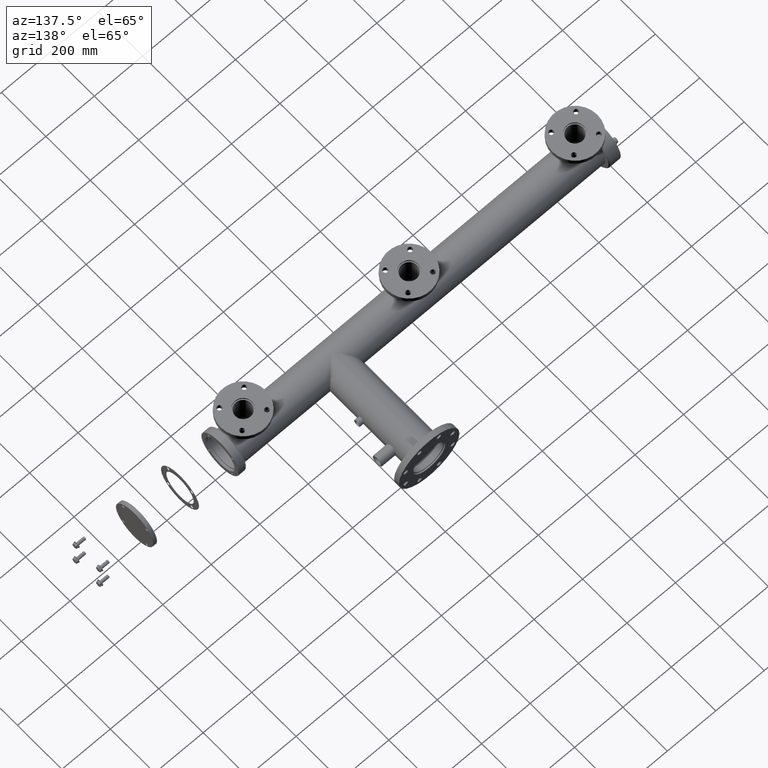
[diagram: clean part render]
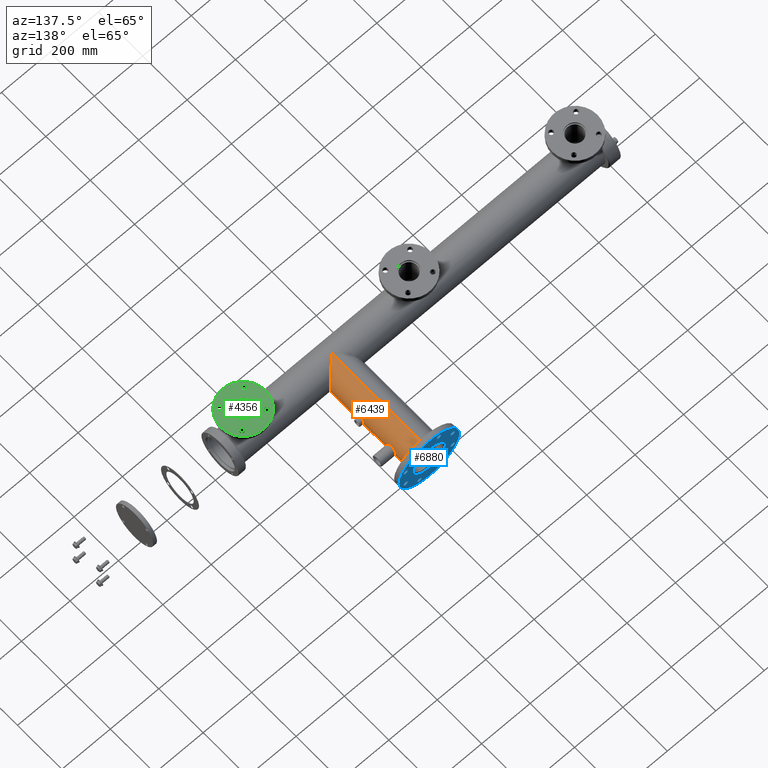
[diagram: same view with three faces highlighted in distinct colors, each labeled with its STEP entity id]
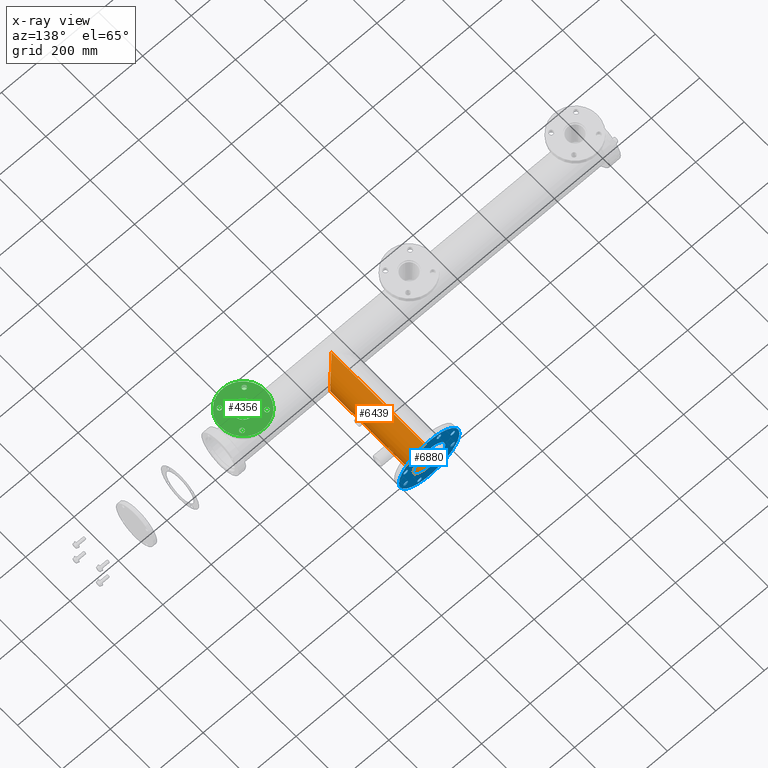
[diagram: x-ray of the same camera — body ghosted, the three highlighted faces saturated]
A machine part, auxiliary view with three faces highlighted in distinct colors.
The next image is the same camera in x-ray (body ghosted, the three faces saturated) — at least one of them is partly hidden behind the body in this view.
Their STEP definitions:

[orange] entity #6439 — the highlighted cylindrical surface (edge-blend (fillet) strip) has radius 66.5 mm, axis along (-0, -1, -0).
#27 = CARTESIAN_POINT ( 'NONE',  ( 386.4500293515864655, 330.3374283854724354, 2.596521400911405486 ) ) ;
#72 = CARTESIAN_POINT ( 'NONE',  ( 385.9323706279011503, 334.9879680968893467, 8.677919983124057879 ) ) ;
#94 = CARTESIAN_POINT ( 'NONE',  ( 320.0000000000000568, 1.564393730959410799E-13, -66.50000000000000000 ) ) ;
#223 = DIRECTION ( 'NONE',  ( 0.000000000000000000, 0.000000000000000000, -1.000000000000000000 ) ) ;
#253 = VERTEX_POINT ( 'NONE', #5325 ) ;
#326 = CARTESIAN_POINT ( 'NONE',  ( 320.0000000000000000, 434.9999999999998863, 0.000000000000000000 ) ) ;
#403 = CARTESIAN_POINT ( 'NONE',  ( 385.8917766481858393, 344.4225731648260762, -8.974852318835287335 ) ) ;
#445 = ORIENTED_EDGE ( 'NONE', *, *, #4425, .F. ) ;
#515 = CARTESIAN_POINT ( 'NONE',  ( 385.7438210024333216, 339.9999999999999432, 10.00000000000001066 ) ) ;
#526 = EDGE_LOOP ( 'NONE', ( #4016, #7071, #4644, #6212, #2782 ) ) ;
#566 = CARTESIAN_POINT ( 'NONE',  ( 320.0000000000000000, 434.9999999999998863, -66.50000000000000000 ) ) ;
#614 = AXIS2_PLACEMENT_3D ( 'NONE', #10146, #3082, #6268 ) ;
#615 = EDGE_CURVE ( 'NONE', #253, #3253, #880, .T. ) ;
#663 = CARTESIAN_POINT ( 'NONE',  ( 386.4999350399459104, 349.9995680155510627, -0.6673739008594847810 ) ) ;
#717 = CARTESIAN_POINT ( 'NONE',  ( 386.5000643238168436, 350.0004277534700350, 0.6543647062676873905 ) ) ;
#742 = CARTESIAN_POINT ( 'NONE',  ( 386.4903019188029134, 330.0638835682153740, 1.306539715836101845 ) ) ;
#796 = CARTESIAN_POINT ( 'NONE',  ( 385.7560620300040455, 338.6894921493071706, -9.919242922401560136 ) ) ;
#852 = CARTESIAN_POINT ( 'NONE',  ( 386.4225883514600355, 330.5279815938378078, 3.223054592244518624 ) ) ;
#880 =( BOUNDED_CURVE ( )  B_SPLINE_CURVE ( 3, ( #9950, #5102, #2726, #9173 ),
 .UNSPECIFIED., .F., .F. ) 
 B_SPLINE_CURVE_WITH_KNOTS ( ( 4, 4 ),
 ( 3.141592653589793116, 4.712388980384689674 ),
 .UNSPECIFIED. ) 
 CURVE ( )  GEOMETRIC_REPRESENTATION_ITEM ( )  RATIONAL_B_SPLINE_CURVE ( ( 1.000000000000000000, 0.8047378541243649375, 0.8047378541243649375, 1.000000000000000000 ) ) 
 REPRESENTATION_ITEM ( '' )  );
#888 = VERTEX_POINT ( 'NONE', #4118 ) ;
#899 = CARTESIAN_POINT ( 'NONE',  ( 386.3531682708813833, 331.0269137788728813, 4.426128135641646644 ) ) ;
#943 = CARTESIAN_POINT ( 'NONE',  ( 386.1728496388304279, 332.4627149802382178, -6.604816768852957765 ) ) ;
#981 = CARTESIAN_POINT ( 'NONE',  ( 320.0000000000000000, 434.9999999999998863, 66.50000000000000000 ) ) ;
#1334 = CARTESIAN_POINT ( 'NONE',  ( 385.7438210024333785, 339.9999999999999432, -10.00000000000001066 ) ) ;
#1568 = CARTESIAN_POINT ( 'NONE',  ( 385.8727985143951287, 335.8688003886163642, -9.112653167735253135 ) ) ;
#1587 = CARTESIAN_POINT ( 'NONE',  ( 385.7438210024333216, 339.9999999999999432, 10.00000000000001066 ) ) ;
#1672 = CARTESIAN_POINT ( 'NONE',  ( 386.0241169918720630, 333.8987896627345435, -7.949785380708817684 ) ) ;
#1719 = CARTESIAN_POINT ( 'NONE',  ( 386.3723657741020361, 330.8864727760613391, -4.129305419759584872 ) ) ;
#1917 =( BOUNDED_CURVE ( )  B_SPLINE_CURVE ( 3, ( #8945, #4304, #4351, #9244 ),
 .UNSPECIFIED., .F., .T. ) 
 B_SPLINE_CURVE_WITH_KNOTS ( ( 4, 4 ),
 ( 1.570796326794896558, 3.141592653589793116 ),
 .UNSPECIFIED. ) 
 CURVE ( )  GEOMETRIC_REPRESENTATION_ITEM ( )  RATIONAL_B_SPLINE_CURVE ( ( 1.000000000000000000, 0.8047378541243649375, 0.8047378541243649375, 1.000000000000000000 ) ) 
 REPRESENTATION_ITEM ( '' )  );
#1950 = CARTESIAN_POINT ( 'NONE',  ( 385.8218371740156272, 343.2190193227747272, -9.473382896997586400 ) ) ;
#2084 = VECTOR ( 'NONE', #6036, 1000.000000000000000 ) ;
#2161 = CARTESIAN_POINT ( 'NONE',  ( 386.0742727024590408, 346.6157907795417827, 7.526956437105591036 ) ) ;
#2207 = CARTESIAN_POINT ( 'NONE',  ( 385.8224905978969446, 343.2323776629529561, 9.468847366194561133 ) ) ;
#2226 = CARTESIAN_POINT ( 'NONE',  ( 320.0000000000000000, 434.9999999999998863, 66.50000000000000000 ) ) ;
#2253 = CARTESIAN_POINT ( 'NONE',  ( 386.4622097470750646, 349.7457302772274943, 2.264314326755914042 ) ) ;
#2311 = CARTESIAN_POINT ( 'NONE',  ( 385.7438210024333785, 340.6615727042562867, 10.00000000000001243 ) ) ;
#2348 = CARTESIAN_POINT ( 'NONE',  ( 386.0009743175249923, 334.1731781683043323, 8.133562386771238550 ) ) ;
#2366 = CARTESIAN_POINT ( 'NONE',  ( 385.7538065292854981, 341.3153000828781387, 9.934988317679971814 ) ) ;
#2447 = CARTESIAN_POINT ( 'NONE',  ( 386.2900469367691585, 331.5057351248266286, -5.287099465400896037 ) ) ;
#2503 = CARTESIAN_POINT ( 'NONE',  ( 385.9557144921005829, 334.7104858522495761, -8.492761852040223047 ) ) ;
#2546 = CARTESIAN_POINT ( 'NONE',  ( 386.2901235519580041, 331.5050981898876330, 5.286275668027236918 ) ) ;
#2602 = FACE_OUTER_BOUND ( 'NONE', #526, .T. ) ;
#2726 = CARTESIAN_POINT ( 'NONE',  ( 358.9547981021891587, 38.95479810218936478, 66.49999999999998579 ) ) ;
#2782 = ORIENTED_EDGE ( 'NONE', *, *, #8253, .F. ) ;
#2939 = CARTESIAN_POINT ( 'NONE',  ( 386.4226104083658129, 349.4721745878365482, -3.222660743660526794 ) ) ;
#2994 = CARTESIAN_POINT ( 'NONE',  ( 386.0251836325355157, 346.1132328522191415, 7.941123537630383922 ) ) ;
#3049 = CARTESIAN_POINT ( 'NONE',  ( 385.9552649350673619, 345.2840195900771505, -8.496281508641358116 ) ) ;
#3082 = DIRECTION ( 'NONE',  ( 0.000000000000000000, 1.000000000000000000, 0.000000000000000000 ) ) ;
#3098 = CARTESIAN_POINT ( 'NONE',  ( 386.3127144668197843, 348.6749949844557364, -5.016969842619828590 ) ) ;
#3128 = CARTESIAN_POINT ( 'NONE',  ( 385.7538062407403459, 338.6877793085953385, 9.934965307917938304 ) ) ;
#3152 = CARTESIAN_POINT ( 'NONE',  ( 385.7827011596006628, 342.2842957684267731, 9.741175218497067689 ) ) ;
#3184 = CARTESIAN_POINT ( 'NONE',  ( 385.7462541660131592, 339.3460321147201739, -9.984044119762486957 ) ) ;
#3230 = CARTESIAN_POINT ( 'NONE',  ( 385.7822840313187385, 337.7281913864429725, 9.743985341044473003 ) ) ;
#3253 = VERTEX_POINT ( 'NONE', #8851 ) ;
#3286 = CARTESIAN_POINT ( 'NONE',  ( 386.4247517883278533, 330.5100363445335461, -3.220365920580829489 ) ) ;
#3329 = CARTESIAN_POINT ( 'NONE',  ( 386.2213502015836184, 332.0533826417046157, 6.106025005529136074 ) ) ;
#3396 = EDGE_CURVE ( 'NONE', #3658, #3253, #8324, .T. ) ;
#3489 = DIRECTION ( 'NONE',  ( -0.000000000000000000, -1.000000000000000000, -0.000000000000000000 ) ) ;
#3512 = CARTESIAN_POINT ( 'NONE',  ( 385.7535515604686225, 341.3025977446802131, -9.936664887218794817 ) ) ;
#3537 = CYLINDRICAL_SURFACE ( 'NONE', #8071, 66.50000000000000000 ) ;
#3658 = VERTEX_POINT ( 'NONE', #981 ) ;
#3765 = CARTESIAN_POINT ( 'NONE',  ( 386.3550141073376381, 348.9888499675103049, 4.430495943103543333 ) ) ;
#3798 = CARTESIAN_POINT ( 'NONE',  ( 385.7438210024333216, 339.9999999999999432, 10.00000000000001066 ) ) ;
#3821 = CARTESIAN_POINT ( 'NONE',  ( 386.0732121799038055, 346.6052708491932890, -7.536256868306362655 ) ) ;
#3873 = CARTESIAN_POINT ( 'NONE',  ( 386.2453588077968902, 348.1381770483337164, 5.820384680312241876 ) ) ;
#3897 = CARTESIAN_POINT ( 'NONE',  ( 386.0738153214506383, 333.3997643855818751, 7.519648002216390736 ) ) ;
#3947 = CARTESIAN_POINT ( 'NONE',  ( 386.0249616160215851, 333.9082354420272623, 7.937167052122372723 ) ) ;
#4007 = CARTESIAN_POINT ( 'NONE',  ( 386.0985207984999761, 333.1577155146688938, 7.299945905158729431 ) ) ;
#4016 = ORIENTED_EDGE ( 'NONE', *, *, #8691, .F. ) ;
#4051 = CARTESIAN_POINT ( 'NONE',  ( 386.4879552517496677, 330.0803621619623982, -1.307583979518420758 ) ) ;
#4104 = CARTESIAN_POINT ( 'NONE',  ( 385.8906713199306751, 335.5620112211900619, 8.985197061164917898 ) ) ;
#4118 = CARTESIAN_POINT ( 'NONE',  ( 385.7438210024333785, 339.9999999999999432, -10.00000000000001066 ) ) ;
#4304 = CARTESIAN_POINT ( 'NONE',  ( 358.9547981021891587, 38.95479810218934347, -66.49999999999998579 ) ) ;
#4327 = B_SPLINE_CURVE_WITH_KNOTS ( 'NONE', 3,
 ( #3798, #5389, #3128, #3230, #7138, #8687, #8008, #4104, #72, #2348, #3947, #3897, #4007, #6259, #3329, #2546, #9572, #899, #6361, #5489, #852, #27, #6410, #742, #8633, #7237, #7807, #4051, #5590, #8749, #3286, #1719, #4873, #9517, #2447, #7086, #943, #4715, #1672, #2503, #4829, #7856, #1568, #7967, #4773, #7187, #796, #3184, #6463, #9414 ),
 .UNSPECIFIED., .F., .F.,
 ( 4, 2, 2, 2, 2, 2, 2, 2, 2, 2, 2, 2, 2, 2, 2, 2, 2, 2, 2, 2, 2, 2, 2, 2, 4 ),
 ( 0.000000000000000000, 0.001956808637597764501, 0.002935212956396644150, 0.003913617275195523798, 0.005870425912793139113, 0.006848830231591946337, 0.007827234550390749224, 0.009784043187988233567, 0.01076244750678697140, 0.01174085182558571271, 0.01271925614438445054, 0.01369766046318319185, 0.01565446910078070394, 0.01663287341957946086, 0.01761127773837821778, 0.01956808637597573161, 0.02054649069477449894, 0.02152489501357325932, 0.02348170365117086336, 0.02543851228876846740, 0.02641691660756726595, 0.02739532092636606797, 0.02935212956396366160, 0.03033053388276246015, 0.03130893820156125523 ),
 .UNSPECIFIED. ) ;
#4329 = CARTESIAN_POINT ( 'NONE',  ( 385.8534015964339687, 343.8329040051184506, -9.253459873210198694 ) ) ;
#4351 = CARTESIAN_POINT ( 'NONE',  ( 386.5000000000000568, 66.50000000000017053, -38.95479810218918715 ) ) ;
#4425 = EDGE_CURVE ( 'NONE', #10098, #888, #4327, .T. ) ;
#4532 = CARTESIAN_POINT ( 'NONE',  ( 386.0241914488009343, 346.1024108319116408, -7.949291292194955005 ) ) ;
#4641 = CARTESIAN_POINT ( 'NONE',  ( 386.3541598521456990, 348.9825750423528916, -4.443362853369414722 ) ) ;
#4644 = ORIENTED_EDGE ( 'NONE', *, *, #615, .F. ) ;
#4715 = CARTESIAN_POINT ( 'NONE',  ( 386.0731881778576735, 333.3946361090056598, -7.536805549222653333 ) ) ;
#4773 = CARTESIAN_POINT ( 'NONE',  ( 385.7920907885728070, 337.3998656671435015, -9.678201294885068862 ) ) ;
#4829 = CARTESIAN_POINT ( 'NONE',  ( 385.9337781189861403, 334.9903641737015505, -8.660909367771809642 ) ) ;
#4873 = CARTESIAN_POINT ( 'NONE',  ( 386.3529764584955046, 331.0283222051791086, -4.429056380253611813 ) ) ;
#4984 = VERTEX_POINT ( 'NONE', #566 ) ;
#5051 = CARTESIAN_POINT ( 'NONE',  ( 385.7438210024334353, 340.6529670600782538, -10.00000000000001599 ) ) ;
#5102 = CARTESIAN_POINT ( 'NONE',  ( 386.5000000000000568, 66.50000000000017053, 38.95479810218917294 ) ) ;
#5314 = CARTESIAN_POINT ( 'NONE',  ( 385.9559986945939727, 345.2931984045685567, 8.490601591537087600 ) ) ;
#5325 = CARTESIAN_POINT ( 'NONE',  ( 386.5000000000000568, 66.50000000000017053, 0.000000000000000000 ) ) ;
#5359 = CARTESIAN_POINT ( 'NONE',  ( 386.4066733640379425, 349.3601174380914927, -3.534930480884336923 ) ) ;
#5389 = CARTESIAN_POINT ( 'NONE',  ( 385.7438210024333216, 339.3382647414477447, 10.00000000000001243 ) ) ;
#5410 = CARTESIAN_POINT ( 'NONE',  ( 386.4899882655163879, 349.9340064007342903, -1.319254446139957793 ) ) ;
#5440 = VECTOR ( 'NONE', #6200, 1000.000000000000000 ) ;
#5489 = CARTESIAN_POINT ( 'NONE',  ( 386.4069255638094091, 330.6381080989903012, 3.530014163690638362 ) ) ;
#5590 = CARTESIAN_POINT ( 'NONE',  ( 386.4806956964087021, 330.1289868300275998, -1.634049406327314324 ) ) ;
#5870 = CARTESIAN_POINT ( 'NONE',  ( 385.7941862350069187, 342.5928321898150557, -9.663554736688915625 ) ) ;
#6036 = DIRECTION ( 'NONE',  ( -0.000000000000000000, -1.000000000000000000, -0.000000000000000000 ) ) ;
#6075 = CARTESIAN_POINT ( 'NONE',  ( 386.4506153326170192, 349.6666001236251873, 2.581654393427130767 ) ) ;
#6178 = CARTESIAN_POINT ( 'NONE',  ( 386.1481082465153349, 347.3057866251780865, 6.836038472577540048 ) ) ;
#6200 = DIRECTION ( 'NONE',  ( -0.000000000000000000, -1.000000000000000000, -0.000000000000000000 ) ) ;
#6212 = ORIENTED_EDGE ( 'NONE', *, *, #6581, .F. ) ;
#6226 = CARTESIAN_POINT ( 'NONE',  ( 385.7946922565384398, 342.6056718861582908, 9.660114379339963975 ) ) ;
#6259 = CARTESIAN_POINT ( 'NONE',  ( 386.1724010301696239, 332.4669873880726527, 6.608932574503009860 ) ) ;
#6268 = DIRECTION ( 'NONE',  ( -1.000000000000000000, 0.000000000000000000, 0.000000000000000000 ) ) ;
#6279 = CARTESIAN_POINT ( 'NONE',  ( 386.1717782871216400, 347.5275810789783577, -6.615156360639141475 ) ) ;
#6361 = CARTESIAN_POINT ( 'NONE',  ( 386.3722159423887774, 330.8875740753639434, 4.131551007802012343 ) ) ;
#6410 = CARTESIAN_POINT ( 'NONE',  ( 386.4618556226578221, 330.2566795736709651, 2.275098022863660585 ) ) ;
#6439 = ADVANCED_FACE ( 'NONE', ( #8220, #2602 ), #3537, .T. ) ;
#6463 = CARTESIAN_POINT ( 'NONE',  ( 385.7438210024334921, 339.6734362500545217, -10.00000000000001243 ) ) ;
#6540 = CIRCLE ( 'NONE', #614, 66.50000000000000000 ) ;
#6581 = EDGE_CURVE ( 'NONE', #7044, #253, #1917, .T. ) ;
#6844 = CARTESIAN_POINT ( 'NONE',  ( 386.2217377812820018, 347.9497165229468010, -6.101436846094177469 ) ) ;
#6876 = EDGE_CURVE ( 'NONE', #888, #10098, #9651, .T. ) ;
#6899 = CARTESIAN_POINT ( 'NONE',  ( 385.9330483652087764, 344.9999790272336213, -8.666448942350388762 ) ) ;
#6955 = CARTESIAN_POINT ( 'NONE',  ( 386.4617370711548006, 349.7425089386991885, -2.278101939167759049 ) ) ;
#7001 = CARTESIAN_POINT ( 'NONE',  ( 385.8925956985565335, 344.4347070471453662, 8.968837692739214162 ) ) ;
#7044 = VERTEX_POINT ( 'NONE', #94 ) ;
#7071 = ORIENTED_EDGE ( 'NONE', *, *, #3396, .T. ) ;
#7086 = CARTESIAN_POINT ( 'NONE',  ( 386.2219609794964867, 332.0484613104030700, -6.098922738847337044 ) ) ;
#7138 = CARTESIAN_POINT ( 'NONE',  ( 385.7940276523542593, 337.4110385357455471, 9.664637406429779531 ) ) ;
#7187 = CARTESIAN_POINT ( 'NONE',  ( 385.7634284798351132, 338.3625026788905643, -9.870444378885009584 ) ) ;
#7237 = CARTESIAN_POINT ( 'NONE',  ( 386.5000182388894245, 329.9998787113766525, -0.3229022301434509301 ) ) ;
#7673 = CARTESIAN_POINT ( 'NONE',  ( 386.3136527519576475, 348.6821650348526873, 5.004720201462792062 ) ) ;
#7782 = CARTESIAN_POINT ( 'NONE',  ( 386.4902850381639610, 349.9359821429683279, 1.304519406486168709 ) ) ;
#7807 = CARTESIAN_POINT ( 'NONE',  ( 386.4976303611522326, 330.0157191081377164, -0.6504811862877826201 ) ) ;
#7856 = CARTESIAN_POINT ( 'NONE',  ( 385.8923211864619134, 335.5692725870016488, -8.970867114197769610 ) ) ;
#7967 = CARTESIAN_POINT ( 'NONE',  ( 385.8200303842764924, 336.7764454043574460, -9.488821196915628420 ) ) ;
#8008 = CARTESIAN_POINT ( 'NONE',  ( 385.8378281355899730, 336.4699988719703470, 9.361969327727530654 ) ) ;
#8071 = AXIS2_PLACEMENT_3D ( 'NONE', #326, #3489, #223 ) ;
#8194 = CARTESIAN_POINT ( 'NONE',  ( 385.7822716906364349, 342.2719096148472886, -9.744072259240351030 ) ) ;
#8220 = FACE_BOUND ( 'NONE', #8859, .T. ) ;
#8253 = EDGE_CURVE ( 'NONE', #4984, #7044, #9344, .T. ) ;
#8324 = LINE ( 'NONE', #2226, #5440 ) ;
#8388 = ORIENTED_EDGE ( 'NONE', *, *, #6876, .F. ) ;
#8418 = CARTESIAN_POINT ( 'NONE',  ( 320.0000000000000000, 434.9999999999998863, -66.50000000000000000 ) ) ;
#8456 = CARTESIAN_POINT ( 'NONE',  ( 386.4073028535377148, 349.3645744121035932, 3.523056285420671507 ) ) ;
#8633 = CARTESIAN_POINT ( 'NONE',  ( 386.4999632076206240, 330.0002446693385423, 0.6570082773811819488 ) ) ;
#8655 = CARTESIAN_POINT ( 'NONE',  ( 385.8541800074449952, 343.8461793446867887, 9.247935402502813318 ) ) ;
#8687 = CARTESIAN_POINT ( 'NONE',  ( 385.8217682353205760, 336.7822647142910455, 9.473864960630345777 ) ) ;
#8691 = EDGE_CURVE ( 'NONE', #3658, #4984, #6540, .T. ) ;
#8749 = CARTESIAN_POINT ( 'NONE',  ( 386.4523899576930148, 330.3208402233217953, -2.596524576022698483 ) ) ;
#8851 = CARTESIAN_POINT ( 'NONE',  ( 320.0000000000000568, 1.564393730959410799E-13, 66.50000000000000000 ) ) ;
#8859 = EDGE_LOOP ( 'NONE', ( #445, #8388 ) ) ;
#8945 = CARTESIAN_POINT ( 'NONE',  ( 320.0000000000000568, 1.564393730959410799E-13, -66.50000000000000000 ) ) ;
#9173 = CARTESIAN_POINT ( 'NONE',  ( 320.0000000000000568, 1.564393730959410799E-13, 66.50000000000000000 ) ) ;
#9244 = CARTESIAN_POINT ( 'NONE',  ( 386.5000000000000568, 66.50000000000017053, 0.000000000000000000 ) ) ;
#9344 = LINE ( 'NONE', #8418, #2084 ) ;
#9383 = CARTESIAN_POINT ( 'NONE',  ( 386.4231773265744323, 349.4761472141464083, 3.211032751779088201 ) ) ;
#9414 = CARTESIAN_POINT ( 'NONE',  ( 385.7438210024333785, 339.9999999999999432, -10.00000000000001066 ) ) ;
#9517 = CARTESIAN_POINT ( 'NONE',  ( 386.3118435406727258, 331.3377767683414277, -5.007337771557187622 ) ) ;
#9572 = CARTESIAN_POINT ( 'NONE',  ( 386.3121844626700181, 331.3351777306731378, 5.002773395415426094 ) ) ;
#9651 = B_SPLINE_CURVE_WITH_KNOTS ( 'NONE', 3,
 ( #1334, #5051, #3512, #8194, #5870, #1950, #4329, #403, #6899, #3049, #4532, #3821, #6279, #6844, #3098, #4641, #5359, #2939, #10155, #6955, #5410, #663, #717, #7782, #2253, #6075, #9383, #8456, #3765, #7673, #3873, #10110, #10000, #6178, #2161, #2994, #5314, #10052, #7001, #8655, #2207, #6226, #3152, #2366, #2311, #1587 ),
 .UNSPECIFIED., .F., .F.,
 ( 4, 2, 2, 1, 2, 2, 2, 2, 2, 2, 2, 2, 2, 2, 2, 2, 2, 2, 2, 2, 1, 2, 2, 4 ),
 ( 0.03130893820156125523, 0.03326526615198639736, 0.03424343012719888169, 0.03522159410241137295, 0.03619975807762386422, 0.03717792205283634854, 0.03913425000326133107, 0.04109057795368630667, 0.04304690590411128226, 0.04402506987932374577, 0.04500323385453620234, 0.04695956180496112242, 0.04891588975538603556, 0.04989405373059849214, 0.05087221770581094871, 0.05282854565623586185, 0.05380670963144831842, 0.05478487360666077499, 0.05674120155708556323, 0.05771936553229795042, 0.05869752950751034454, 0.05967569348272273866, 0.06065385745793513278, 0.06261018540835991408 ),
 .UNSPECIFIED. ) ;
#9950 = CARTESIAN_POINT ( 'NONE',  ( 386.5000000000000568, 66.50000000000017053, 0.000000000000000000 ) ) ;
#10000 = CARTESIAN_POINT ( 'NONE',  ( 386.1727574691304312, 347.5250659767557408, 6.594035339611298063 ) ) ;
#10052 = CARTESIAN_POINT ( 'NONE',  ( 385.9338505240017412, 345.0104993385851913, 8.660344827473002383 ) ) ;
#10098 = VERTEX_POINT ( 'NONE', #515 ) ;
#10110 = CARTESIAN_POINT ( 'NONE',  ( 386.2214203272095574, 347.9416180365933542, 6.085936491241420221 ) ) ;
#10146 = CARTESIAN_POINT ( 'NONE',  ( 320.0000000000000000, 434.9999999999998863, 0.000000000000000000 ) ) ;
#10155 = CARTESIAN_POINT ( 'NONE',  ( 386.4500963767183066, 349.6630340181567931, -2.594880971283756388 ) ) ;

[blue] entity #6880 — the highlighted planar face has unit normal (-0, -1, 0).
#98 = ORIENTED_EDGE ( 'NONE', *, *, #5026, .F. ) ;
#128 = DIRECTION ( 'NONE',  ( -0.7071067811865561215, 0.7071067811865391350, 0.000000000000000000 ) ) ;
#132 = AXIS2_PLACEMENT_3D ( 'NONE', #1402, #3065, #7691 ) ;
#189 = CARTESIAN_POINT ( 'NONE',  ( 97.00735091368457574, 49.18176039833552693, -22.00000000000002132 ) ) ;
#310 = CARTESIAN_POINT ( 'NONE',  ( 97.00735091368467522, 40.18176039833552693, -22.00000000000002132 ) ) ;
#364 = EDGE_LOOP ( 'NONE', ( #4188, #4075 ) ) ;
#415 = CARTESIAN_POINT ( 'NONE',  ( 97.00735091368467522, 40.18176039833552693, -22.00000000000002132 ) ) ;
#436 = AXIS2_PLACEMENT_3D ( 'NONE', #6561, #9100, #1827 ) ;
#457 = AXIS2_PLACEMENT_3D ( 'NONE', #5924, #1276, #9072 ) ;
#470 = DIRECTION ( 'NONE',  ( -1.079383496163346391E-14, 1.000000000000000000, 0.000000000000000000 ) ) ;
#509 = DIRECTION ( 'NONE',  ( 3.083952846180989689E-15, -1.000000000000000000, 0.000000000000000000 ) ) ;
#514 = ORIENTED_EDGE ( 'NONE', *, *, #6287, .F. ) ;
#547 = DIRECTION ( 'NONE',  ( 0.7071067811865513475, -0.7071067811865435759, 0.000000000000000000 ) ) ;
#574 = DIRECTION ( 'NONE',  ( 1.000000000000000000, -1.420362989772363657E-32, 0.000000000000000000 ) ) ;
#640 = EDGE_CURVE ( 'NONE', #2831, #9448, #952, .T. ) ;
#728 = DIRECTION ( 'NONE',  ( 1.000000000000000000, -1.420362989772363657E-32, 0.000000000000000000 ) ) ;
#731 = CARTESIAN_POINT ( 'NONE',  ( 31.18176039833448598, -97.00735091368505891, -22.00000000000002132 ) ) ;
#741 = EDGE_CURVE ( 'NONE', #3306, #2386, #4917, .T. ) ;
#765 = DIRECTION ( 'NONE',  ( 1.000000000000000000, -1.420362989772364204E-32, -1.725633230170963324E-31 ) ) ;
#775 = CARTESIAN_POINT ( 'NONE',  ( -40.18176039833448954, 97.00735091368505891, -22.00000000000002132 ) ) ;
#784 = CARTESIAN_POINT ( 'NONE',  ( -90.64338988300650612, 46.54572142901310627, -22.00000000000002132 ) ) ;
#864 = EDGE_LOOP ( 'NONE', ( #514, #5844 ) ) ;
#928 = EDGE_CURVE ( 'NONE', #2360, #9727, #6630, .T. ) ;
#952 = CIRCLE ( 'NONE', #6714, 9.000000000000001776 ) ;
#954 = CIRCLE ( 'NONE', #3932, 66.50000000000000000 ) ;
#1086 = DIRECTION ( 'NONE',  ( 1.725633230170963324E-31, -3.019858152799185818E-31, -1.000000000000000000 ) ) ;
#1107 = ORIENTED_EDGE ( 'NONE', *, *, #1715, .F. ) ;
#1116 = CARTESIAN_POINT ( 'NONE',  ( -97.00735091368511576, -40.18176039833485191, -22.00000000000002132 ) ) ;
#1175 = CARTESIAN_POINT ( 'NONE',  ( -97.00735091368511576, -40.18176039833485191, -22.00000000000002132 ) ) ;
#1276 = DIRECTION ( 'NONE',  ( 1.725633230170963324E-31, -3.019858152799185818E-31, -1.000000000000000000 ) ) ;
#1328 = DIRECTION ( 'NONE',  ( -1.725633230170963324E-31, 3.019858152799185818E-31, 1.000000000000000000 ) ) ;
#1384 = FACE_BOUND ( 'NONE', #4883, .T. ) ;
#1402 = CARTESIAN_POINT ( 'NONE',  ( 0.000000000000000000, -9.244463733058732095E-30, -22.00000000000002132 ) ) ;
#1437 = FACE_BOUND ( 'NONE', #4587, .T. ) ;
#1539 = PLANE ( 'NONE',  #6111 ) ;
#1652 = CIRCLE ( 'NONE', #2484, 125.0000000000000000 ) ;
#1715 = EDGE_CURVE ( 'NONE', #2891, #2690, #9667, .T. ) ;
#1776 = CIRCLE ( 'NONE', #8206, 9.000000000000001776 ) ;
#1827 = DIRECTION ( 'NONE',  ( -0.7071067811865463515, -0.7071067811865487940, 0.000000000000000000 ) ) ;
#1874 = CARTESIAN_POINT ( 'NONE',  ( 66.50000000000000000, -1.018900512125735437E-29, -22.00000000000002132 ) ) ;
#2141 = CIRCLE ( 'NONE', #7417, 9.000000000000003553 ) ;
#2165 = DIRECTION ( 'NONE',  ( 1.725633230170963324E-31, -3.019858152799185818E-31, -1.000000000000000000 ) ) ;
#2213 = EDGE_CURVE ( 'NONE', #3249, #8201, #10047, .T. ) ;
#2242 = CIRCLE ( 'NONE', #2920, 8.999999999999996447 ) ;
#2299 = ORIENTED_EDGE ( 'NONE', *, *, #8397, .T. ) ;
#2360 = VERTEX_POINT ( 'NONE', #3117 ) ;
#2386 = VERTEX_POINT ( 'NONE', #9348 ) ;
#2484 = AXIS2_PLACEMENT_3D ( 'NONE', #6794, #1328, #6745 ) ;
#2591 = DIRECTION ( 'NONE',  ( 1.725633230170963324E-31, -3.019858152799185818E-31, -1.000000000000000000 ) ) ;
#2638 = CIRCLE ( 'NONE', #10053, 9.000000000000003553 ) ;
#2690 = VERTEX_POINT ( 'NONE', #8318 ) ;
#2798 = DIRECTION ( 'NONE',  ( 0.7071067811865513475, -0.7071067811865435759, 0.000000000000000000 ) ) ;
#2831 = VERTEX_POINT ( 'NONE', #9226 ) ;
#2851 = EDGE_CURVE ( 'NONE', #9398, #5968, #1652, .T. ) ;
#2891 = VERTEX_POINT ( 'NONE', #8395 ) ;
#2920 = AXIS2_PLACEMENT_3D ( 'NONE', #6315, #8641, #128 ) ;
#2976 = ORIENTED_EDGE ( 'NONE', *, *, #9508, .F. ) ;
#3028 = EDGE_CURVE ( 'NONE', #10070, #9477, #2638, .T. ) ;
#3065 = DIRECTION ( 'NONE',  ( -1.725633230170963324E-31, 3.019858152799185818E-31, 1.000000000000000000 ) ) ;
#3117 = CARTESIAN_POINT ( 'NONE',  ( 49.18176039833448954, -97.00735091368505891, -22.00000000000002132 ) ) ;
#3249 = VERTEX_POINT ( 'NONE', #189 ) ;
#3306 = VERTEX_POINT ( 'NONE', #3790 ) ;
#3326 = CARTESIAN_POINT ( 'NONE',  ( 90.64338988300659139, -46.54572142901247389, -22.00000000000002132 ) ) ;
#3515 = DIRECTION ( 'NONE',  ( 1.725633230170963324E-31, -3.019858152799185818E-31, -1.000000000000000000 ) ) ;
#3568 = CARTESIAN_POINT ( 'NONE',  ( -125.0000000000000000, 1.530808498934191561E-14, -22.00000000000002132 ) ) ;
#3744 = AXIS2_PLACEMENT_3D ( 'NONE', #4673, #10037, #547 ) ;
#3769 = CARTESIAN_POINT ( 'NONE',  ( 103.3713119443643365, -33.81779936765450856, -22.00000000000002132 ) ) ;
#3790 = CARTESIAN_POINT ( 'NONE',  ( 33.81779936765415329, 103.3713119443644644, -22.00000000000002132 ) ) ;
#3796 = AXIS2_PLACEMENT_3D ( 'NONE', #415, #6710, #470 ) ;
#3814 = ORIENTED_EDGE ( 'NONE', *, *, #928, .F. ) ;
#3824 = CARTESIAN_POINT ( 'NONE',  ( -103.3713119443643507, 33.81779936765522621, -22.00000000000002132 ) ) ;
#3926 = DIRECTION ( 'NONE',  ( -1.000000000000000000, 0.000000000000000000, 0.000000000000000000 ) ) ;
#3932 = AXIS2_PLACEMENT_3D ( 'NONE', #9297, #7794, #574 ) ;
#4050 = CARTESIAN_POINT ( 'NONE',  ( -97.00735091368508733, -49.18176039833485902, -22.00000000000002132 ) ) ;
#4075 = ORIENTED_EDGE ( 'NONE', *, *, #8053, .F. ) ;
#4188 = ORIENTED_EDGE ( 'NONE', *, *, #2213, .F. ) ;
#4320 = ORIENTED_EDGE ( 'NONE', *, *, #7485, .F. ) ;
#4583 = FACE_BOUND ( 'NONE', #9099, .T. ) ;
#4587 = EDGE_LOOP ( 'NONE', ( #5933, #4320 ) ) ;
#4673 = CARTESIAN_POINT ( 'NONE',  ( -40.18176039833382163, -97.00735091368534313, -22.00000000000002132 ) ) ;
#4738 = FACE_BOUND ( 'NONE', #864, .T. ) ;
#4743 = EDGE_LOOP ( 'NONE', ( #5919, #9938 ) ) ;
#4883 = EDGE_LOOP ( 'NONE', ( #3814, #7263 ) ) ;
#4891 = CIRCLE ( 'NONE', #436, 9.000000000000001776 ) ;
#4905 = ORIENTED_EDGE ( 'NONE', *, *, #9632, .T. ) ;
#4917 = CIRCLE ( 'NONE', #457, 8.999999999999996447 ) ;
#4919 = CIRCLE ( 'NONE', #132, 125.0000000000000000 ) ;
#5026 = EDGE_CURVE ( 'NONE', #2690, #2891, #5514, .T. ) ;
#5167 = DIRECTION ( 'NONE',  ( 1.725633230170963324E-31, -3.019858152799185818E-31, -1.000000000000000000 ) ) ;
#5191 = EDGE_LOOP ( 'NONE', ( #2976, #6197 ) ) ;
#5458 = FACE_BOUND ( 'NONE', #364, .T. ) ;
#5514 = CIRCLE ( 'NONE', #8143, 9.000000000000001776 ) ;
#5664 = EDGE_LOOP ( 'NONE', ( #98, #1107 ) ) ;
#5797 = DIRECTION ( 'NONE',  ( 0.7071067811865416886, 0.7071067811865532349, 0.000000000000000000 ) ) ;
#5844 = ORIENTED_EDGE ( 'NONE', *, *, #640, .F. ) ;
#5874 = DIRECTION ( 'NONE',  ( -0.7071067811865463515, -0.7071067811865487940, 0.000000000000000000 ) ) ;
#5919 = ORIENTED_EDGE ( 'NONE', *, *, #3028, .F. ) ;
#5924 = CARTESIAN_POINT ( 'NONE',  ( 40.18176039833315372, 97.00735091368561314, -22.00000000000002132 ) ) ;
#5933 = ORIENTED_EDGE ( 'NONE', *, *, #741, .F. ) ;
#5968 = VERTEX_POINT ( 'NONE', #3568 ) ;
#6019 = VERTEX_POINT ( 'NONE', #6651 ) ;
#6067 = ORIENTED_EDGE ( 'NONE', *, *, #9655, .F. ) ;
#6111 = AXIS2_PLACEMENT_3D ( 'NONE', #7880, #7729, #765 ) ;
#6136 = FACE_BOUND ( 'NONE', #5191, .T. ) ;
#6197 = ORIENTED_EDGE ( 'NONE', *, *, #7241, .F. ) ;
#6287 = EDGE_CURVE ( 'NONE', #9448, #2831, #9574, .T. ) ;
#6315 = CARTESIAN_POINT ( 'NONE',  ( 40.18176039833315372, 97.00735091368561314, -22.00000000000002132 ) ) ;
#6409 = CARTESIAN_POINT ( 'NONE',  ( 125.0000000000000000, -1.101991747027418726E-29, -22.00000000000002132 ) ) ;
#6437 = VERTEX_POINT ( 'NONE', #1874 ) ;
#6485 = DIRECTION ( 'NONE',  ( 1.725633230170963324E-31, -3.019858152799185818E-31, -1.000000000000000000 ) ) ;
#6533 = EDGE_CURVE ( 'NONE', #9477, #10070, #2141, .T. ) ;
#6549 = DIRECTION ( 'NONE',  ( -1.079383496163346391E-14, 1.000000000000000000, 0.000000000000000000 ) ) ;
#6561 = CARTESIAN_POINT ( 'NONE',  ( -97.00735091368542840, 40.18176039833416979, -22.00000000000002132 ) ) ;
#6587 = AXIS2_PLACEMENT_3D ( 'NONE', #1116, #8090, #6640 ) ;
#6630 = CIRCLE ( 'NONE', #9110, 9.000000000000001776 ) ;
#6640 = DIRECTION ( 'NONE',  ( 3.083952846180989689E-15, -1.000000000000000000, 0.000000000000000000 ) ) ;
#6651 = CARTESIAN_POINT ( 'NONE',  ( -66.50000000000000000, 8.143901214329898396E-15, -22.00000000000002132 ) ) ;
#6710 = DIRECTION ( 'NONE',  ( 1.725633230170963324E-31, -3.019858152799185818E-31, -1.000000000000000000 ) ) ;
#6714 = AXIS2_PLACEMENT_3D ( 'NONE', #1175, #9850, #509 ) ;
#6745 = DIRECTION ( 'NONE',  ( 1.000000000000000000, -1.420362989772363930E-32, 0.000000000000000000 ) ) ;
#6794 = CARTESIAN_POINT ( 'NONE',  ( 0.000000000000000000, -9.244463733058732095E-30, -22.00000000000002132 ) ) ;
#6836 = EDGE_LOOP ( 'NONE', ( #9077, #6067 ) ) ;
#6864 = AXIS2_PLACEMENT_3D ( 'NONE', #775, #6485, #3926 ) ;
#6880 = ADVANCED_FACE ( 'NONE', ( #1437, #5458, #8553, #1384, #6136, #4738, #9283, #8502, #8606, #4583 ), #1539, .F. ) ;
#6884 = CIRCLE ( 'NONE', #10189, 8.999999999999998224 ) ;
#6895 = DIRECTION ( 'NONE',  ( 1.725633230170963324E-31, -3.019858152799185818E-31, -1.000000000000000000 ) ) ;
#7185 = CARTESIAN_POINT ( 'NONE',  ( 40.18176039833448954, -97.00735091368505891, -22.00000000000002132 ) ) ;
#7235 = DIRECTION ( 'NONE',  ( 1.725633230170963324E-31, -3.019858152799185818E-31, -1.000000000000000000 ) ) ;
#7241 = EDGE_CURVE ( 'NONE', #8124, #8132, #8339, .T. ) ;
#7263 = ORIENTED_EDGE ( 'NONE', *, *, #9451, .F. ) ;
#7417 = AXIS2_PLACEMENT_3D ( 'NONE', #9824, #1086, #5797 ) ;
#7424 = CARTESIAN_POINT ( 'NONE',  ( -97.00735091368542840, 40.18176039833416979, -22.00000000000002132 ) ) ;
#7485 = EDGE_CURVE ( 'NONE', #2386, #3306, #2242, .T. ) ;
#7521 = CIRCLE ( 'NONE', #9839, 9.000000000000001776 ) ;
#7634 = EDGE_CURVE ( 'NONE', #10145, #9782, #4891, .T. ) ;
#7689 = CARTESIAN_POINT ( 'NONE',  ( 97.00735091368477470, 31.18176039833552693, -22.00000000000002132 ) ) ;
#7691 = DIRECTION ( 'NONE',  ( 1.000000000000000000, -1.420362989772363930E-32, 0.000000000000000000 ) ) ;
#7727 = DIRECTION ( 'NONE',  ( 0.7071067811865416886, 0.7071067811865532349, 0.000000000000000000 ) ) ;
#7729 = DIRECTION ( 'NONE',  ( 1.725633230170963324E-31, 3.019858152799185818E-31, 1.000000000000000000 ) ) ;
#7794 = DIRECTION ( 'NONE',  ( -1.725633230170963324E-31, 3.019858152799185818E-31, 1.000000000000000000 ) ) ;
#7880 = CARTESIAN_POINT ( 'NONE',  ( 0.000000000000000000, 125.0000000000001990, -22.00000000000002132 ) ) ;
#8053 = EDGE_CURVE ( 'NONE', #8201, #3249, #7521, .T. ) ;
#8085 = EDGE_LOOP ( 'NONE', ( #9427, #9091 ) ) ;
#8090 = DIRECTION ( 'NONE',  ( 1.725633230170963324E-31, -3.019858152799185818E-31, -1.000000000000000000 ) ) ;
#8124 = VERTEX_POINT ( 'NONE', #8354 ) ;
#8132 = VERTEX_POINT ( 'NONE', #8517 ) ;
#8143 = AXIS2_PLACEMENT_3D ( 'NONE', #9236, #2165, #9909 ) ;
#8201 = VERTEX_POINT ( 'NONE', #7689 ) ;
#8206 = AXIS2_PLACEMENT_3D ( 'NONE', #7185, #7235, #8835 ) ;
#8264 = CARTESIAN_POINT ( 'NONE',  ( -40.18176039833382163, -97.00735091368534313, -22.00000000000002132 ) ) ;
#8318 = CARTESIAN_POINT ( 'NONE',  ( -49.18176039833448954, 97.00735091368505891, -22.00000000000002132 ) ) ;
#8339 = CIRCLE ( 'NONE', #3744, 8.999999999999998224 ) ;
#8348 = CIRCLE ( 'NONE', #9673, 66.50000000000000000 ) ;
#8354 = CARTESIAN_POINT ( 'NONE',  ( -46.54572142901277942, -90.64338988300644928, -22.00000000000002132 ) ) ;
#8395 = CARTESIAN_POINT ( 'NONE',  ( -31.18176039833448598, 97.00735091368505891, -22.00000000000002132 ) ) ;
#8397 = EDGE_CURVE ( 'NONE', #6019, #6437, #8348, .T. ) ;
#8498 = CARTESIAN_POINT ( 'NONE',  ( 97.00735091368545682, -40.18176039833348767, -22.00000000000002132 ) ) ;
#8502 = FACE_BOUND ( 'NONE', #5664, .T. ) ;
#8517 = CARTESIAN_POINT ( 'NONE',  ( -33.81779936765486383, -103.3713119443642370, -22.00000000000002132 ) ) ;
#8553 = FACE_BOUND ( 'NONE', #4743, .T. ) ;
#8606 = FACE_OUTER_BOUND ( 'NONE', #6836, .T. ) ;
#8638 = DIRECTION ( 'NONE',  ( 1.725633230170963324E-31, -3.019858152799185818E-31, -1.000000000000000000 ) ) ;
#8641 = DIRECTION ( 'NONE',  ( 1.725633230170963324E-31, -3.019858152799185818E-31, -1.000000000000000000 ) ) ;
#8719 = AXIS2_PLACEMENT_3D ( 'NONE', #7424, #3515, #5874 ) ;
#8729 = CARTESIAN_POINT ( 'NONE',  ( 0.000000000000000000, -9.244463733058732095E-30, -22.00000000000002132 ) ) ;
#8800 = DIRECTION ( 'NONE',  ( 1.000000000000000000, 0.000000000000000000, 0.000000000000000000 ) ) ;
#8835 = DIRECTION ( 'NONE',  ( 1.000000000000000000, 0.000000000000000000, 0.000000000000000000 ) ) ;
#8840 = CARTESIAN_POINT ( 'NONE',  ( 40.18176039833448954, -97.00735091368505891, -22.00000000000002132 ) ) ;
#9040 = CIRCLE ( 'NONE', #8719, 9.000000000000001776 ) ;
#9072 = DIRECTION ( 'NONE',  ( -0.7071067811865561215, 0.7071067811865391350, 0.000000000000000000 ) ) ;
#9077 = ORIENTED_EDGE ( 'NONE', *, *, #2851, .F. ) ;
#9091 = ORIENTED_EDGE ( 'NONE', *, *, #9972, .F. ) ;
#9099 = EDGE_LOOP ( 'NONE', ( #4905, #2299 ) ) ;
#9100 = DIRECTION ( 'NONE',  ( 1.725633230170963324E-31, -3.019858152799185818E-31, -1.000000000000000000 ) ) ;
#9110 = AXIS2_PLACEMENT_3D ( 'NONE', #8840, #8638, #8800 ) ;
#9226 = CARTESIAN_POINT ( 'NONE',  ( -97.00735091368514418, -31.18176039833485547, -22.00000000000002132 ) ) ;
#9236 = CARTESIAN_POINT ( 'NONE',  ( -40.18176039833448954, 97.00735091368505891, -22.00000000000002132 ) ) ;
#9283 = FACE_BOUND ( 'NONE', #8085, .T. ) ;
#9297 = CARTESIAN_POINT ( 'NONE',  ( 0.000000000000000000, -9.244463733058732095E-30, -22.00000000000002132 ) ) ;
#9348 = CARTESIAN_POINT ( 'NONE',  ( 46.54572142901215415, 90.64338988300677613, -22.00000000000002132 ) ) ;
#9397 = DIRECTION ( 'NONE',  ( -1.725633230170963324E-31, 3.019858152799185818E-31, 1.000000000000000000 ) ) ;
#9398 = VERTEX_POINT ( 'NONE', #6409 ) ;
#9427 = ORIENTED_EDGE ( 'NONE', *, *, #7634, .F. ) ;
#9448 = VERTEX_POINT ( 'NONE', #4050 ) ;
#9451 = EDGE_CURVE ( 'NONE', #9727, #2360, #1776, .T. ) ;
#9477 = VERTEX_POINT ( 'NONE', #3326 ) ;
#9508 = EDGE_CURVE ( 'NONE', #8132, #8124, #6884, .T. ) ;
#9574 = CIRCLE ( 'NONE', #6587, 9.000000000000001776 ) ;
#9632 = EDGE_CURVE ( 'NONE', #6437, #6019, #954, .T. ) ;
#9655 = EDGE_CURVE ( 'NONE', #5968, #9398, #4919, .T. ) ;
#9667 = CIRCLE ( 'NONE', #6864, 9.000000000000001776 ) ;
#9673 = AXIS2_PLACEMENT_3D ( 'NONE', #8729, #9397, #728 ) ;
#9727 = VERTEX_POINT ( 'NONE', #731 ) ;
#9782 = VERTEX_POINT ( 'NONE', #784 ) ;
#9824 = CARTESIAN_POINT ( 'NONE',  ( 97.00735091368545682, -40.18176039833348767, -22.00000000000002132 ) ) ;
#9839 = AXIS2_PLACEMENT_3D ( 'NONE', #310, #2591, #6549 ) ;
#9850 = DIRECTION ( 'NONE',  ( 1.725633230170963324E-31, -3.019858152799185818E-31, -1.000000000000000000 ) ) ;
#9909 = DIRECTION ( 'NONE',  ( -1.000000000000000000, 0.000000000000000000, 0.000000000000000000 ) ) ;
#9938 = ORIENTED_EDGE ( 'NONE', *, *, #6533, .F. ) ;
#9972 = EDGE_CURVE ( 'NONE', #9782, #10145, #9040, .T. ) ;
#10037 = DIRECTION ( 'NONE',  ( 1.725633230170963324E-31, -3.019858152799185818E-31, -1.000000000000000000 ) ) ;
#10047 = CIRCLE ( 'NONE', #3796, 9.000000000000001776 ) ;
#10053 = AXIS2_PLACEMENT_3D ( 'NONE', #8498, #6895, #7727 ) ;
#10070 = VERTEX_POINT ( 'NONE', #3769 ) ;
#10145 = VERTEX_POINT ( 'NONE', #3824 ) ;
#10189 = AXIS2_PLACEMENT_3D ( 'NONE', #8264, #5167, #2798 ) ;

[green] entity #4356 — the highlighted planar face has unit normal (0, 0, -1).
#143 = VERTEX_POINT ( 'NONE', #7281 ) ;
#202 = EDGE_CURVE ( 'NONE', #7883, #5043, #2439, .T. ) ;
#211 = CARTESIAN_POINT ( 'NONE',  ( -42.26524163602474715, -51.26524163602460504, 0.000000000000000000 ) ) ;
#270 = DIRECTION ( 'NONE',  ( -1.000000000000000000, 0.000000000000000000, 0.000000000000000000 ) ) ;
#300 = AXIS2_PLACEMENT_3D ( 'NONE', #1353, #1514, #2067 ) ;
#520 = DIRECTION ( 'NONE',  ( 1.000000000000000000, 0.000000000000000000, 0.000000000000000000 ) ) ;
#564 = CARTESIAN_POINT ( 'NONE',  ( 42.26524163602474715, 51.26524163602460504, 0.000000000000000000 ) ) ;
#711 = EDGE_LOOP ( 'NONE', ( #9436, #9036 ) ) ;
#834 = ORIENTED_EDGE ( 'NONE', *, *, #5474, .F. ) ;
#1353 = CARTESIAN_POINT ( 'NONE',  ( 51.26524163602519479, -51.26524163602423556, 0.000000000000000000 ) ) ;
#1418 = CIRCLE ( 'NONE', #1479, 9.000000000000001776 ) ;
#1443 = AXIS2_PLACEMENT_3D ( 'NONE', #9372, #2239, #8595 ) ;
#1479 = AXIS2_PLACEMENT_3D ( 'NONE', #8265, #2799, #7531 ) ;
#1514 = DIRECTION ( 'NONE',  ( 0.000000000000000000, 0.000000000000000000, 1.000000000000000000 ) ) ;
#1594 = CARTESIAN_POINT ( 'NONE',  ( -92.50000000000000000, 1.132798289211301698E-14, 0.000000000000000000 ) ) ;
#1727 = VERTEX_POINT ( 'NONE', #1594 ) ;
#1756 = EDGE_CURVE ( 'NONE', #3495, #1727, #10001, .T. ) ;
#1801 = ORIENTED_EDGE ( 'NONE', *, *, #202, .F. ) ;
#1920 = VERTEX_POINT ( 'NONE', #9117 ) ;
#1953 = DIRECTION ( 'NONE',  ( 0.000000000000000000, 0.000000000000000000, 1.000000000000000000 ) ) ;
#1981 = AXIS2_PLACEMENT_3D ( 'NONE', #6085, #9666, #270 ) ;
#2067 = DIRECTION ( 'NONE',  ( 1.079383496163346391E-14, -1.000000000000000000, 0.000000000000000000 ) ) ;
#2074 = CARTESIAN_POINT ( 'NONE',  ( 0.000000000000000000, 92.50000000000000000, 0.000000000000000000 ) ) ;
#2189 = EDGE_CURVE ( 'NONE', #6119, #1920, #1418, .T. ) ;
#2239 = DIRECTION ( 'NONE',  ( -0.000000000000000000, -0.000000000000000000, 1.000000000000000000 ) ) ;
#2271 = DIRECTION ( 'NONE',  ( -3.854941057726237111E-15, 1.000000000000000000, 0.000000000000000000 ) ) ;
#2334 = VERTEX_POINT ( 'NONE', #8520 ) ;
#2439 = CIRCLE ( 'NONE', #4094, 9.000000000000001776 ) ;
#2477 = DIRECTION ( 'NONE',  ( -0.000000000000000000, -0.000000000000000000, 1.000000000000000000 ) ) ;
#2614 = AXIS2_PLACEMENT_3D ( 'NONE', #5825, #1953, #3462 ) ;
#2625 = DIRECTION ( 'NONE',  ( 1.000000000000000000, 0.000000000000000000, 0.000000000000000000 ) ) ;
#2674 = ORIENTED_EDGE ( 'NONE', *, *, #9916, .F. ) ;
#2799 = DIRECTION ( 'NONE',  ( 0.000000000000000000, 0.000000000000000000, 1.000000000000000000 ) ) ;
#2842 = ORIENTED_EDGE ( 'NONE', *, *, #8765, .F. ) ;
#2867 = FACE_BOUND ( 'NONE', #6124, .T. ) ;
#2917 = DIRECTION ( 'NONE',  ( 0.000000000000000000, 0.000000000000000000, -1.000000000000000000 ) ) ;
#2999 = CARTESIAN_POINT ( 'NONE',  ( 51.26524163602529427, -60.26524163602423556, 0.000000000000000000 ) ) ;
#3027 = FACE_BOUND ( 'NONE', #9581, .T. ) ;
#3417 = DIRECTION ( 'NONE',  ( 0.000000000000000000, 0.000000000000000000, 1.000000000000000000 ) ) ;
#3441 = AXIS2_PLACEMENT_3D ( 'NONE', #4821, #3417, #5112 ) ;
#3462 = DIRECTION ( 'NONE',  ( -3.854941057726237111E-15, 1.000000000000000000, 0.000000000000000000 ) ) ;
#3495 = VERTEX_POINT ( 'NONE', #7699 ) ;
#3589 = ORIENTED_EDGE ( 'NONE', *, *, #1756, .T. ) ;
#3590 = CIRCLE ( 'NONE', #1443, 36.50000000000000000 ) ;
#3770 = CIRCLE ( 'NONE', #7536, 9.000000000000001776 ) ;
#3912 = AXIS2_PLACEMENT_3D ( 'NONE', #7063, #2477, #520 ) ;
#4094 = AXIS2_PLACEMENT_3D ( 'NONE', #4544, #5371, #5939 ) ;
#4212 = ORIENTED_EDGE ( 'NONE', *, *, #5788, .F. ) ;
#4356 = ADVANCED_FACE ( 'NONE', ( #4559, #9931, #3027, #2867, #6877, #9262 ), #6006, .F. ) ;
#4417 = ORIENTED_EDGE ( 'NONE', *, *, #9620, .F. ) ;
#4447 = DIRECTION ( 'NONE',  ( 0.000000000000000000, 0.000000000000000000, 1.000000000000000000 ) ) ;
#4463 = DIRECTION ( 'NONE',  ( -1.000000000000000000, 0.000000000000000000, -0.000000000000000000 ) ) ;
#4502 = DIRECTION ( 'NONE',  ( 1.000000000000000000, 0.000000000000000000, 0.000000000000000000 ) ) ;
#4544 = CARTESIAN_POINT ( 'NONE',  ( 51.26524163602519479, -51.26524163602423556, 0.000000000000000000 ) ) ;
#4559 = FACE_BOUND ( 'NONE', #9081, .T. ) ;
#4602 = CARTESIAN_POINT ( 'NONE',  ( 51.26524163602474715, 51.26524163602460504, 0.000000000000000000 ) ) ;
#4605 = VERTEX_POINT ( 'NONE', #5378 ) ;
#4821 = CARTESIAN_POINT ( 'NONE',  ( 51.26524163602474715, 51.26524163602460504, 0.000000000000000000 ) ) ;
#4834 = CARTESIAN_POINT ( 'NONE',  ( -51.26524163602471873, 42.26524163602459083, 0.000000000000000000 ) ) ;
#5043 = VERTEX_POINT ( 'NONE', #2999 ) ;
#5112 = DIRECTION ( 'NONE',  ( 1.000000000000000000, 0.000000000000000000, 0.000000000000000000 ) ) ;
#5371 = DIRECTION ( 'NONE',  ( 0.000000000000000000, 0.000000000000000000, 1.000000000000000000 ) ) ;
#5378 = CARTESIAN_POINT ( 'NONE',  ( 60.26524163602475426, 51.26524163602460504, 0.000000000000000000 ) ) ;
#5392 = CIRCLE ( 'NONE', #6871, 9.000000000000001776 ) ;
#5474 = EDGE_CURVE ( 'NONE', #8495, #143, #7714, .T. ) ;
#5503 = ORIENTED_EDGE ( 'NONE', *, *, #6727, .T. ) ;
#5508 = AXIS2_PLACEMENT_3D ( 'NONE', #2074, #2917, #4463 ) ;
#5788 = EDGE_CURVE ( 'NONE', #5043, #7883, #7881, .T. ) ;
#5825 = CARTESIAN_POINT ( 'NONE',  ( -51.26524163602474715, 51.26524163602459083, 0.000000000000000000 ) ) ;
#5904 = ORIENTED_EDGE ( 'NONE', *, *, #5910, .F. ) ;
#5910 = EDGE_CURVE ( 'NONE', #9991, #4605, #8213, .T. ) ;
#5939 = DIRECTION ( 'NONE',  ( 1.079383496163346391E-14, -1.000000000000000000, 0.000000000000000000 ) ) ;
#5941 = CIRCLE ( 'NONE', #6100, 92.50000000000000000 ) ;
#6006 = PLANE ( 'NONE',  #5508 ) ;
#6085 = CARTESIAN_POINT ( 'NONE',  ( -51.26524163602474715, -51.26524163602460504, 0.000000000000000000 ) ) ;
#6100 = AXIS2_PLACEMENT_3D ( 'NONE', #8869, #8783, #2625 ) ;
#6119 = VERTEX_POINT ( 'NONE', #211 ) ;
#6124 = EDGE_LOOP ( 'NONE', ( #4417, #5904 ) ) ;
#6309 = CARTESIAN_POINT ( 'NONE',  ( 0.000000000000000000, 0.000000000000000000, 0.000000000000000000 ) ) ;
#6411 = DIRECTION ( 'NONE',  ( -0.000000000000000000, -0.000000000000000000, 1.000000000000000000 ) ) ;
#6482 = EDGE_CURVE ( 'NONE', #1920, #6119, #10060, .T. ) ;
#6574 = CARTESIAN_POINT ( 'NONE',  ( -36.50000000000000000, 4.469960816887839219E-15, 0.000000000000000000 ) ) ;
#6727 = EDGE_CURVE ( 'NONE', #1727, #3495, #5941, .T. ) ;
#6741 = EDGE_LOOP ( 'NONE', ( #2842, #834 ) ) ;
#6871 = AXIS2_PLACEMENT_3D ( 'NONE', #6968, #7582, #2271 ) ;
#6877 = FACE_BOUND ( 'NONE', #6741, .T. ) ;
#6968 = CARTESIAN_POINT ( 'NONE',  ( -51.26524163602474715, 51.26524163602459083, 0.000000000000000000 ) ) ;
#7063 = CARTESIAN_POINT ( 'NONE',  ( 0.000000000000000000, 0.000000000000000000, 0.000000000000000000 ) ) ;
#7281 = CARTESIAN_POINT ( 'NONE',  ( 36.50000000000000000, 0.000000000000000000, 0.000000000000000000 ) ) ;
#7531 = DIRECTION ( 'NONE',  ( -1.000000000000000000, 0.000000000000000000, 0.000000000000000000 ) ) ;
#7536 = AXIS2_PLACEMENT_3D ( 'NONE', #4602, #4447, #4502 ) ;
#7556 = VERTEX_POINT ( 'NONE', #4834 ) ;
#7582 = DIRECTION ( 'NONE',  ( 0.000000000000000000, 0.000000000000000000, 1.000000000000000000 ) ) ;
#7699 = CARTESIAN_POINT ( 'NONE',  ( 92.50000000000000000, 0.000000000000000000, 0.000000000000000000 ) ) ;
#7714 = CIRCLE ( 'NONE', #8858, 36.50000000000000000 ) ;
#7881 = CIRCLE ( 'NONE', #300, 9.000000000000001776 ) ;
#7883 = VERTEX_POINT ( 'NONE', #8936 ) ;
#8115 = EDGE_CURVE ( 'NONE', #2334, #7556, #5392, .T. ) ;
#8213 = CIRCLE ( 'NONE', #3441, 9.000000000000001776 ) ;
#8265 = CARTESIAN_POINT ( 'NONE',  ( -51.26524163602474715, -51.26524163602460504, 0.000000000000000000 ) ) ;
#8495 = VERTEX_POINT ( 'NONE', #6574 ) ;
#8520 = CARTESIAN_POINT ( 'NONE',  ( -51.26524163602478268, 60.26524163602459083, 0.000000000000000000 ) ) ;
#8595 = DIRECTION ( 'NONE',  ( 1.000000000000000000, 0.000000000000000000, 0.000000000000000000 ) ) ;
#8765 = EDGE_CURVE ( 'NONE', #143, #8495, #3590, .T. ) ;
#8783 = DIRECTION ( 'NONE',  ( -0.000000000000000000, -0.000000000000000000, 1.000000000000000000 ) ) ;
#8826 = ORIENTED_EDGE ( 'NONE', *, *, #8115, .F. ) ;
#8858 = AXIS2_PLACEMENT_3D ( 'NONE', #6309, #6411, #9464 ) ;
#8869 = CARTESIAN_POINT ( 'NONE',  ( 0.000000000000000000, 0.000000000000000000, 0.000000000000000000 ) ) ;
#8870 = CIRCLE ( 'NONE', #2614, 9.000000000000001776 ) ;
#8936 = CARTESIAN_POINT ( 'NONE',  ( 51.26524163602510242, -42.26524163602423556, 0.000000000000000000 ) ) ;
#8951 = EDGE_LOOP ( 'NONE', ( #3589, #5503 ) ) ;
#9036 = ORIENTED_EDGE ( 'NONE', *, *, #2189, .F. ) ;
#9081 = EDGE_LOOP ( 'NONE', ( #8826, #2674 ) ) ;
#9117 = CARTESIAN_POINT ( 'NONE',  ( -60.26524163602475426, -51.26524163602460504, 0.000000000000000000 ) ) ;
#9262 = FACE_OUTER_BOUND ( 'NONE', #8951, .T. ) ;
#9372 = CARTESIAN_POINT ( 'NONE',  ( 0.000000000000000000, 0.000000000000000000, 0.000000000000000000 ) ) ;
#9436 = ORIENTED_EDGE ( 'NONE', *, *, #6482, .F. ) ;
#9464 = DIRECTION ( 'NONE',  ( 1.000000000000000000, 0.000000000000000000, 0.000000000000000000 ) ) ;
#9581 = EDGE_LOOP ( 'NONE', ( #4212, #1801 ) ) ;
#9620 = EDGE_CURVE ( 'NONE', #4605, #9991, #3770, .T. ) ;
#9666 = DIRECTION ( 'NONE',  ( 0.000000000000000000, 0.000000000000000000, 1.000000000000000000 ) ) ;
#9916 = EDGE_CURVE ( 'NONE', #7556, #2334, #8870, .T. ) ;
#9931 = FACE_BOUND ( 'NONE', #711, .T. ) ;
#9991 = VERTEX_POINT ( 'NONE', #564 ) ;
#10001 = CIRCLE ( 'NONE', #3912, 92.50000000000000000 ) ;
#10060 = CIRCLE ( 'NONE', #1981, 9.000000000000001776 ) ;